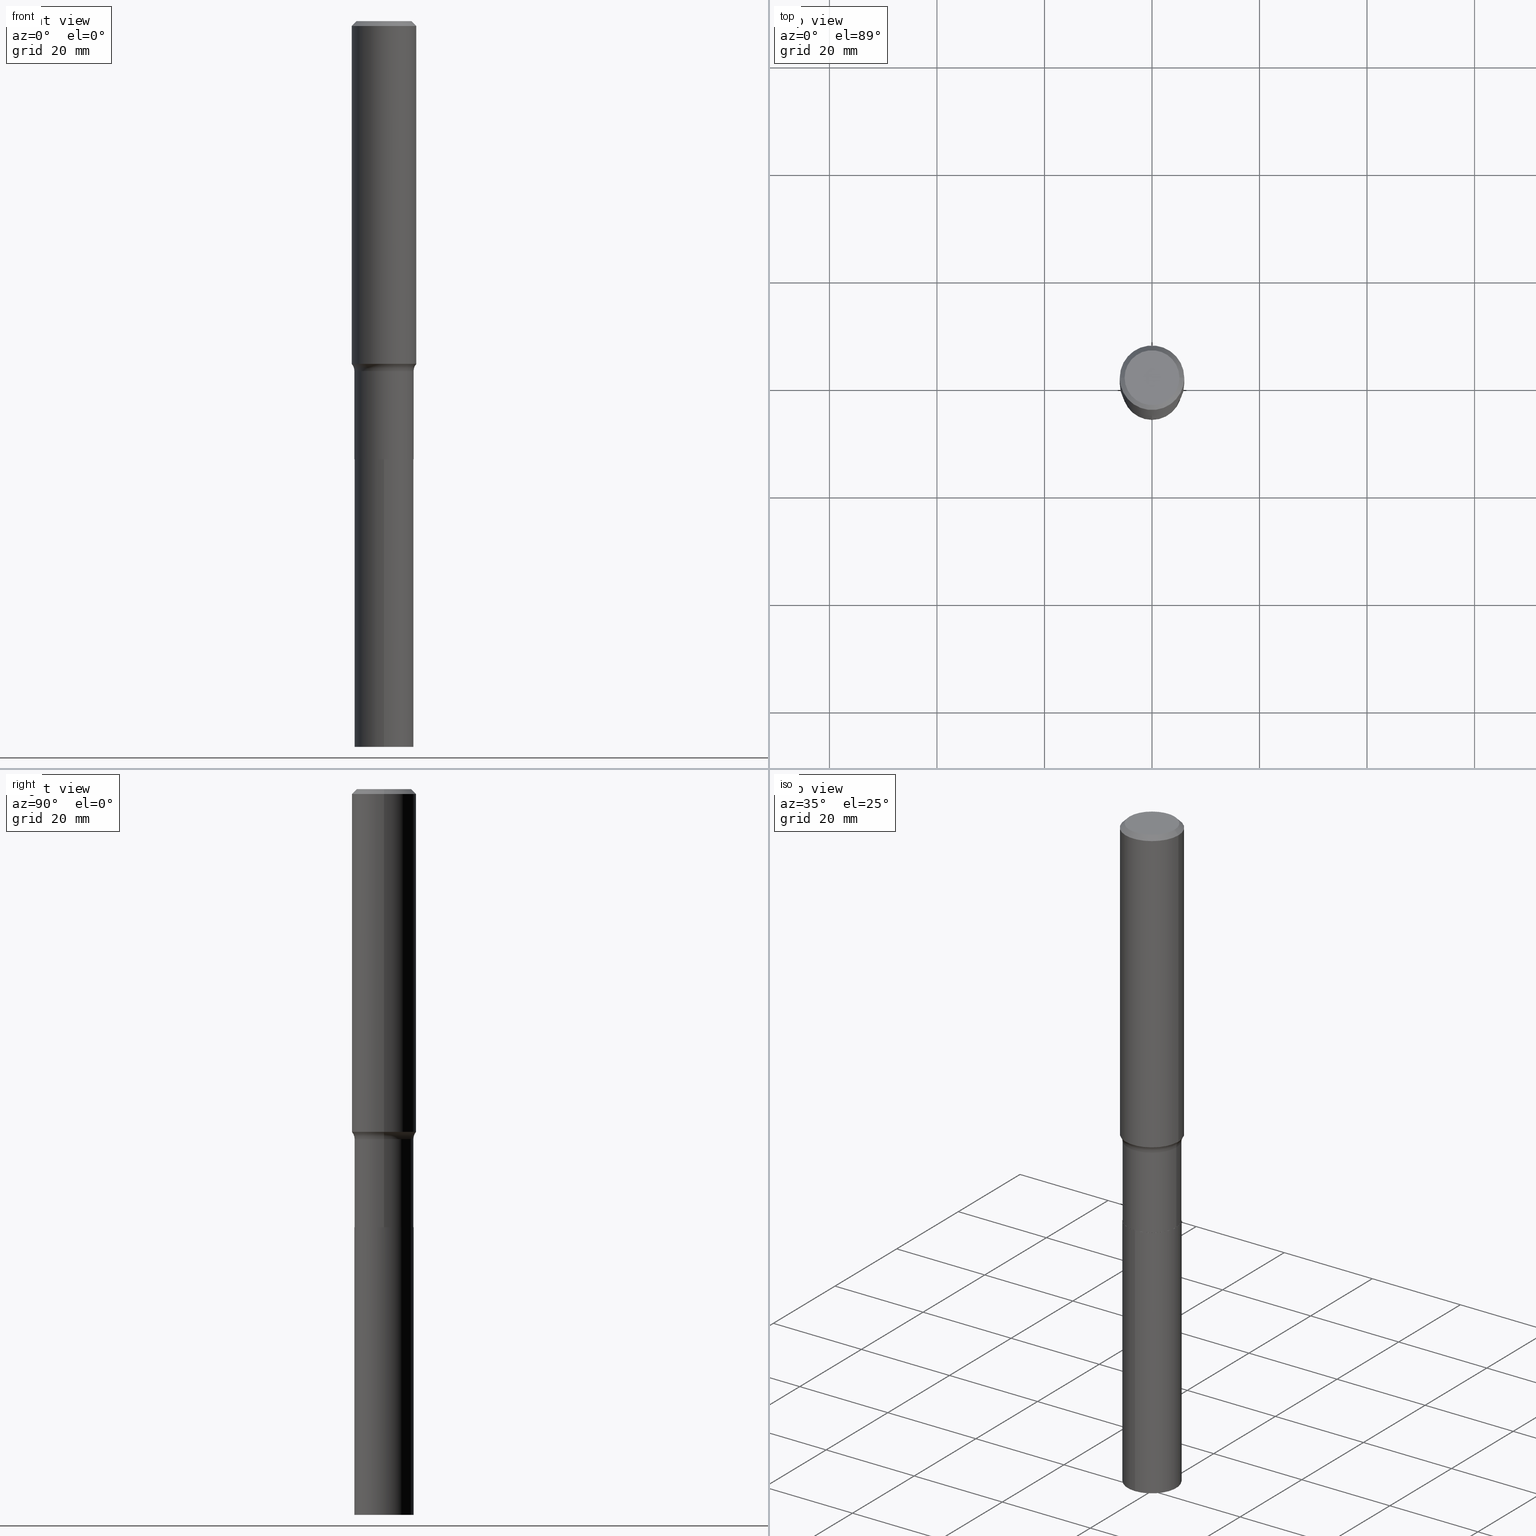
[diagram: canonical four-view strip — front | top / right | iso, engineering-drawing reading convention]
A machine part, canonical four-view strip (front | top / right | iso — engineering-drawing reading convention). The complete STEP part file that produces these views, byte-faithful:
ISO-10303-21;
HEADER;
FILE_DESCRIPTION (( 'STEP AP203' ),
    '1' );
FILE_NAME ('67898.STEP',
    '2024-04-19T16:56:33',
    ( '' ),
    ( '' ),
    'SwSTEP 2.0',
    'SolidWorks 2023',
    '' );
FILE_SCHEMA (( 'CONFIG_CONTROL_DESIGN' ));
ENDSEC;

DATA;
#1 = CARTESIAN_POINT ( 'NONE',  ( 1.538680294288627061E-15, 0.2165499999999888070, -3.209000000000001407 ) ) ;
#2 = ADVANCED_FACE ( 'NONE', ( #262 ), #219, .T. ) ;
#3 = FACE_OUTER_BOUND ( 'NONE', #400, .T. ) ;
#4 = CLOSED_SHELL ( 'NONE', ( #359, #339, #205, #185 ) ) ;
#5 = AXIS2_PLACEMENT_3D ( 'NONE', #292, #16, #157 ) ;
#6 = ORIENTED_EDGE ( 'NONE', *, *, #386, .T. ) ;
#7 = DIRECTION ( 'NONE',  ( -6.982962677686265133E-15, -1.000000000000000000, 2.523064413451178124E-15 ) ) ;
#8 = CARTESIAN_POINT ( 'NONE',  ( 1.299823801295359673E-28, -1.855640517026451512E-14, -5.315000000000001279 ) ) ;
#9 = VERTEX_POINT ( 'NONE', #411 ) ;
#10 = CARTESIAN_POINT ( 'NONE',  ( -0.2160500000000000198, -9.666386808563847423E-15, -3.209000000000000519 ) ) ;
#11 = VECTOR ( 'NONE', #77, 39.37007874015748143 ) ;
#12 = DIRECTION ( 'NONE',  ( 1.000000000000000000, -6.982962677686266711E-15, 0.000000000000000000 ) ) ;
#13 = ORIENTED_EDGE ( 'NONE', *, *, #317, .F. ) ;
#14 = ADVANCED_FACE ( 'NONE', ( #223 ), #269, .T. ) ;
#15 = ORIENTED_EDGE ( 'NONE', *, *, #116, .F. ) ;
#16 = DIRECTION ( 'NONE',  ( -2.445468806185136597E-29, 3.491481338843145583E-15, 1.000000000000000000 ) ) ;
#17 = ORIENTED_EDGE ( 'NONE', *, *, #423, .F. ) ;
#18 = VERTEX_POINT ( 'NONE', #390 ) ;
#19 = APPROVAL ( #422, 'UNSPECIFIED' ) ;
#20 = CARTESIAN_POINT ( 'NONE',  ( 7.847509399048105518E-29, -1.120416361634765640E-14, -3.209000000000000519 ) ) ;
#21 = PRODUCT ( '67898', '67898', '', ( #203 ) ) ;
#22 = PERSON ( 'UNSPECIFIED', 'UNSPECIFIED', 'UNSPECIFIED', ('UNSPECIFIED'), ('UNSPECIFIED'), ('UNSPECIFIED') ) ;
#23 = DESIGN_CONTEXT ( 'detailed design', #80, 'design' ) ;
#24 = CIRCLE ( 'NONE', #40, 0.2007700000000000040 ) ;
#25 = APPROVAL_PERSON_ORGANIZATION ( #344, #244, #129 ) ;
#26 = CARTESIAN_POINT ( 'NONE',  ( 0.2160500000000000198, -1.271283270286177422E-14, -3.209000000000000519 ) ) ;
#27 = DIRECTION ( 'NONE',  ( -2.445740082576205296E-29, 3.491092855611041770E-15, 1.000000000000000000 ) ) ;
#28 = ADVANCED_FACE ( 'NONE', ( #36 ), #95, .T. ) ;
#29 = PERSON_AND_ORGANIZATION ( #22, #392 ) ;
#30 = ADVANCED_BREP_SHAPE_REPRESENTATION ( '67898', ( #100, #418, #431 ), #327 ) ;
#31 = CYLINDRICAL_SURFACE ( 'NONE', #457, 0.2165499999999999647 ) ;
#32 = COORDINATED_UNIVERSAL_TIME_OFFSET ( 5, 0, .BEHIND. ) ;
#33 = CARTESIAN_POINT ( 'NONE',  ( 8.664295980313996991E-31, -1.237031838352134818E-16, -0.03543000000000023908 ) ) ;
#34 = EDGE_CURVE ( 'NONE', #452, #145, #318, .T. ) ;
#35 = PERSON_AND_ORGANIZATION_ROLE ( 'creator' ) ;
#36 = FACE_OUTER_BOUND ( 'NONE', #366, .T. ) ;
#37 = EDGE_CURVE ( 'NONE', #9, #321, #82, .T. ) ;
#38 = DIRECTION ( 'NONE',  ( -6.982962677686265922E-15, -1.000000000000000000, 3.491092855611041770E-15 ) ) ;
#39 = PLANE ( 'NONE',  #133 ) ;
#40 = AXIS2_PLACEMENT_3D ( 'NONE', #350, #312, #98 ) ;
#41 = DIRECTION ( 'NONE',  ( -2.445468806185136597E-29, 3.491481338843145583E-15, 1.000000000000000000 ) ) ;
#42 = PRODUCT_DEFINITION ( 'UNKNOWN', '', #220, #23 ) ;
#43 = CARTESIAN_POINT ( 'NONE',  ( -1.001697619218023151E-46, 1.430158722866391908E-32, 4.096137381448114529E-18 ) ) ;
#44 = DIRECTION ( 'NONE',  ( -2.445468806185136597E-29, 3.491481338843145583E-15, 1.000000000000000000 ) ) ;
#45 = ORIENTED_EDGE ( 'NONE', *, *, #184, .F. ) ;
#46 = CLOSED_SHELL ( 'NONE', ( #14, #2, #28, #54, #120, #180, #211, #335, #110, #356, #201, #237 ) ) ;
#47 = CIRCLE ( 'NONE', #338, 0.2165499999999999370 ) ;
#48 = CARTESIAN_POINT ( 'NONE',  ( -5.008488096090115757E-47, 7.150793614331959538E-33, 2.048068690724057264E-18 ) ) ;
#49 = ORIENTED_EDGE ( 'NONE', *, *, #352, .T. ) ;
#50 = ORIENTED_EDGE ( 'NONE', *, *, #93, .F. ) ;
#51 = VERTEX_POINT ( 'NONE', #426 ) ;
#52 = DIRECTION ( 'NONE',  ( -2.445468806185136597E-29, 3.491481338843145583E-15, 1.000000000000000000 ) ) ;
#53 = ORIENTED_EDGE ( 'NONE', *, *, #468, .F. ) ;
#54 = ADVANCED_FACE ( 'NONE', ( #242 ), #397, .F. ) ;
#55 = EDGE_CURVE ( 'NONE', #192, #18, #354, .T. ) ;
#56 = APPROVAL_ROLE ( '' ) ;
#57 = CIRCLE ( 'NONE', #69, 0.2165500000000000203 ) ;
#58 = CARTESIAN_POINT ( 'NONE',  ( 1.299823801295359673E-28, -1.855640517026451512E-14, -5.315000000000001279 ) ) ;
#59 = DIRECTION ( 'NONE',  ( -6.982962677686265133E-15, -1.000000000000000000, 5.046128826902356247E-15 ) ) ;
#60 = CARTESIAN_POINT ( 'NONE',  ( 0.000000000000000000, 0.000000000000000000, 0.000000000000000000 ) ) ;
#61 = APPROVAL_STATUS ( 'not_yet_approved' ) ;
#62 = TOROIDAL_SURFACE ( 'NONE', #375, 0.2965499999999999248, 0.08000000000000007105 ) ;
#63 = DIRECTION ( 'NONE',  ( 1.000000000000000000, -6.982962677686263555E-15, 0.000000000000000000 ) ) ;
#64 = DIRECTION ( 'NONE',  ( -2.445468806185136597E-29, 3.491481338843145583E-15, 1.000000000000000000 ) ) ;
#65 = CARTESIAN_POINT ( 'NONE',  ( -0.2160500000000000198, -9.669036035737959413E-15, -3.209000000000000519 ) ) ;
#66 = CC_DESIGN_DATE_AND_TIME_ASSIGNMENT ( #173, #311, ( #42 ) ) ;
#67 = DIRECTION ( 'NONE',  ( -2.445468806185136877E-29, 3.491481338843145188E-15, 1.000000000000000000 ) ) ;
#68 = AXIS2_PLACEMENT_3D ( 'NONE', #373, #337, #278 ) ;
#69 = AXIS2_PLACEMENT_3D ( 'NONE', #8, #160, #264 ) ;
#70 = CARTESIAN_POINT ( 'NONE',  ( 7.846286664645011596E-29, -1.120241787567823411E-14, -3.208500000000000352 ) ) ;
#71 = ORIENTED_EDGE ( 'NONE', *, *, #409, .T. ) ;
#72 = CARTESIAN_POINT ( 'NONE',  ( 6.267736550252506452E-29, -8.948666671454983859E-15, -2.563000000000000611 ) ) ;
#73 = VECTOR ( 'NONE', #367, 39.37007874015748143 ) ;
#74 = CC_DESIGN_APPROVAL ( #19, ( #282 ) ) ;
#75 = PRODUCT_DEFINITION_SHAPE ( 'NONE', 'NONE',  #42 ) ;
#76 = ORIENTED_EDGE ( 'NONE', *, *, #285, .T. ) ;
#77 = DIRECTION ( 'NONE',  ( -2.445468806185136877E-29, 3.491481338843145188E-15, 1.000000000000000000 ) ) ;
#78 = EDGE_CURVE ( 'NONE', #290, #217, #202, .T. ) ;
#79 = ORIENTED_EDGE ( 'NONE', *, *, #148, .T. ) ;
#80 = APPLICATION_CONTEXT ( 'configuration controlled 3d designs of mechanical parts and assemblies' ) ;
#81 = ORIENTED_EDGE ( 'NONE', *, *, #322, .F. ) ;
#82 = CIRCLE ( 'NONE', #444, 0.2165500000000000480 ) ;
#83 = CIRCLE ( 'NONE', #319, 0.2165499999999999370 ) ;
#84 = LINE ( 'NONE', #122, #11 ) ;
#85 = EDGE_LOOP ( 'NONE', ( #161, #108 ) ) ;
#86 = PERSON_AND_ORGANIZATION ( #22, #392 ) ;
#87 = ORIENTED_EDGE ( 'NONE', *, *, #317, .T. ) ;
#88 = DATE_AND_TIME ( #241, #250 ) ;
#89 = DIRECTION ( 'NONE',  ( 1.000000000000000000, -6.982962677686266711E-15, 4.876176775795936353E-29 ) ) ;
#90 = PERSON_AND_ORGANIZATION ( #22, #392 ) ;
#91 = DIRECTION ( 'NONE',  ( 1.000000000000000000, -6.982962677686266711E-15, 4.876176775795936353E-29 ) ) ;
#92 = PERSON_AND_ORGANIZATION ( #22, #392 ) ;
#93 = EDGE_CURVE ( 'NONE', #145, #452, #415, .T. ) ;
#94 = DIRECTION ( 'NONE',  ( -6.982962677686266711E-15, -1.000000000000000000, 3.491481338843145583E-15 ) ) ;
#95 = CYLINDRICAL_SURFACE ( 'NONE', #132, 0.2362000000000001598 ) ;
#96 = CC_DESIGN_PERSON_AND_ORGANIZATION_ASSIGNMENT ( #461, #425, ( #21 ) ) ;
#97 = AXIS2_PLACEMENT_3D ( 'NONE', #441, #183, #467 ) ;
#98 = DIRECTION ( 'NONE',  ( 1.000000000000000000, -6.982962677686266711E-15, 4.876140833081945105E-29 ) ) ;
#99 = CIRCLE ( 'NONE', #153, 0.2160500000000000198 ) ;
#100 = MANIFOLD_SOLID_BREP ( 'Body-Move/Copy2[1]', #4 ) ;
#101 = CARTESIAN_POINT ( 'NONE',  ( -0.2165500000000000203, -8.536861979278111098E-15, -3.208500000000000352 ) ) ;
#102 = DIRECTION ( 'NONE',  ( 1.000000000000000000, -6.982962677686266711E-15, 0.000000000000000000 ) ) ;
#103 = ORIENTED_EDGE ( 'NONE', *, *, #215, .T. ) ;
#104 = DIRECTION ( 'NONE',  ( -2.445468806185136597E-29, 3.491481338843145583E-15, 1.000000000000000000 ) ) ;
#105 = AXIS2_PLACEMENT_3D ( 'NONE', #218, #44, #186 ) ;
#106 = EDGE_LOOP ( 'NONE', ( #447, #443, #187, #334 ) ) ;
#107 = FACE_OUTER_BOUND ( 'NONE', #224, .T. ) ;
#108 = ORIENTED_EDGE ( 'NONE', *, *, #434, .F. ) ;
#109 = CYLINDRICAL_SURFACE ( 'NONE', #172, 0.2165500000000000203 ) ;
#110 = ADVANCED_FACE ( 'NONE', ( #138 ), #384, .T. ) ;
#111 = ORIENTED_EDGE ( 'NONE', *, *, #78, .F. ) ;
#112 = DIRECTION ( 'NONE',  ( -2.445740082576205296E-29, 3.491092855611041770E-15, 1.000000000000000000 ) ) ;
#113 = ORIENTED_EDGE ( 'NONE', *, *, #349, .T. ) ;
#114 = AXIS2_PLACEMENT_3D ( 'NONE', #419, #199, #454 ) ;
#115 = APPROVAL_PERSON_ORGANIZATION ( #232, #152, #456 ) ;
#116 = EDGE_CURVE ( 'NONE', #452, #149, #178, .T. ) ;
#117 = EDGE_LOOP ( 'NONE', ( #17, #87, #341, #329 ) ) ;
#118 = LINE ( 'NONE', #448, #270 ) ;
#119 = DIRECTION ( 'NONE',  ( 2.445468806185136597E-29, -3.491481338843145583E-15, -1.000000000000000000 ) ) ;
#120 = ADVANCED_FACE ( 'NONE', ( #136 ), #31, .T. ) ;
#121 = ORIENTED_EDGE ( 'NONE', *, *, #436, .F. ) ;
#122 = CARTESIAN_POINT ( 'NONE',  ( 0.2165499999999999647, -1.512160567852960823E-15, 1.055936080798609895E-29 ) ) ;
#123 = VERTEX_POINT ( 'NONE', #26 ) ;
#124 = AXIS2_PLACEMENT_3D ( 'NONE', #58, #27, #59 ) ;
#125 = CC_DESIGN_APPROVAL ( #244, ( #220 ) ) ;
#126 = APPROVAL_STATUS ( 'not_yet_approved' ) ;
#127 = EDGE_LOOP ( 'NONE', ( #79, #103 ) ) ;
#128 = CARTESIAN_POINT ( 'NONE',  ( 0.2965499999999999248, -1.101946425352284476E-14, -2.563000000000000611 ) ) ;
#129 = APPROVAL_ROLE ( '' ) ;
#130 = DIRECTION ( 'NONE',  ( 2.445740082576205015E-29, -3.491092855611041770E-15, -1.000000000000000000 ) ) ;
#131 = DATE_TIME_ROLE ( 'classification_date' ) ;
#132 = AXIS2_PLACEMENT_3D ( 'NONE', #60, #305, #279 ) ;
#133 = AXIS2_PLACEMENT_3D ( 'NONE', #245, #289, #38 ) ;
#134 = DIRECTION ( 'NONE',  ( 0.7071067811865451302, -7.319954787623248157E-15, -0.7071067811865499042 ) ) ;
#135 = COORDINATED_UNIVERSAL_TIME_OFFSET ( 5, 0, .BEHIND. ) ;
#136 = FACE_OUTER_BOUND ( 'NONE', #332, .T. ) ;
#137 = ORIENTED_EDGE ( 'NONE', *, *, #386, .F. ) ;
#138 = FACE_OUTER_BOUND ( 'NONE', #106, .T. ) ;
#139 = AXIS2_PLACEMENT_3D ( 'NONE', #204, #206, #89 ) ;
#140 = CARTESIAN_POINT ( 'NONE',  ( 6.267736550252506452E-29, -8.948666671454983859E-15, -2.563000000000000611 ) ) ;
#141 = DIRECTION ( 'NONE',  ( -2.445740082576205576E-29, 3.491092855611041770E-15, 1.000000000000000000 ) ) ;
#142 = CARTESIAN_POINT ( 'NONE',  ( 7.847509399048105518E-29, -1.120416361634765640E-14, -3.209000000000000519 ) ) ;
#143 = AXIS2_PLACEMENT_3D ( 'NONE', #43, #104, #147 ) ;
#144 = AXIS2_PLACEMENT_3D ( 'NONE', #300, #52, #370 ) ;
#145 = VERTEX_POINT ( 'NONE', #383 ) ;
#146 = CC_DESIGN_PERSON_AND_ORGANIZATION_ASSIGNMENT ( #92, #35, ( #42 ) ) ;
#147 = DIRECTION ( 'NONE',  ( 1.000000000000000000, -6.982962677686266711E-15, 4.876140833081945105E-29 ) ) ;
#148 = EDGE_CURVE ( 'NONE', #378, #192, #24, .T. ) ;
#149 = VERTEX_POINT ( 'NONE', #238 ) ;
#150 = LENGTH_MEASURE_WITH_UNIT ( LENGTH_MEASURE( 0.02539999999999999897 ), #298 );
#151 = ORIENTED_EDGE ( 'NONE', *, *, #267, .T. ) ;
#152 = APPROVAL ( #61, 'UNSPECIFIED' ) ;
#153 = AXIS2_PLACEMENT_3D ( 'NONE', #295, #254, #410 ) ;
#154 = CYLINDRICAL_SURFACE ( 'NONE', #163, 0.2165500000000000203 ) ;
#155 = ORIENTED_EDGE ( 'NONE', *, *, #423, .T. ) ;
#156 = ORIENTED_EDGE ( 'NONE', *, *, #34, .T. ) ;
#157 = DIRECTION ( 'NONE',  ( 1.000000000000000000, -6.982962677686266711E-15, 0.000000000000000000 ) ) ;
#158 = EDGE_LOOP ( 'NONE', ( #272, #265, #380, #111 ) ) ;
#159 = ORIENTED_EDGE ( 'NONE', *, *, #402, .F. ) ;
#160 = DIRECTION ( 'NONE',  ( -2.445740082576205296E-29, 3.491092855611041770E-15, 1.000000000000000000 ) ) ;
#161 = ORIENTED_EDGE ( 'NONE', *, *, #381, .F. ) ;
#162 = VECTOR ( 'NONE', #67, 39.37007874015748143 ) ;
#163 = AXIS2_PLACEMENT_3D ( 'NONE', #20, #112, #196 ) ;
#164 = APPLICATION_PROTOCOL_DEFINITION ( 'international standard', 'config_control_design', 1994, #80 ) ;
#165 = FACE_OUTER_BOUND ( 'NONE', #117, .T. ) ;
#166 = SHAPE_DEFINITION_REPRESENTATION ( #75, #30 ) ;
#167 = PLANE ( 'NONE',  #247 ) ;
#168 = EDGE_CURVE ( 'NONE', #145, #51, #293, .T. ) ;
#169 = DATE_AND_TIME ( #229, #438 ) ;
#170 = DIRECTION ( 'NONE',  ( 1.000000000000000000, -6.982962677686281699E-15, 0.000000000000000000 ) ) ;
#171 = DIMENSIONAL_EXPONENTS ( 1.000000000000000000, 0.000000000000000000, 0.000000000000000000, 0.000000000000000000, 0.000000000000000000, 0.000000000000000000, 0.000000000000000000 ) ;
#172 = AXIS2_PLACEMENT_3D ( 'NONE', #464, #216, #7 ) ;
#173 = DATE_AND_TIME ( #200, #369 ) ;
#174 = CARTESIAN_POINT ( 'NONE',  ( 6.139311538755103453E-29, -8.765309791191448647E-15, -2.510484502287419595 ) ) ;
#175 = APPROVAL_DATE_TIME ( #88, #244 ) ;
#176 = CARTESIAN_POINT ( 'NONE',  ( -1.512160567852882528E-15, -0.2165500000000112057, -3.209000000000000075 ) ) ;
#177 = CARTESIAN_POINT ( 'NONE',  ( 7.847509399048105518E-29, -1.120416361634765640E-14, -3.209000000000000519 ) ) ;
#178 = CIRCLE ( 'NONE', #234, 0.08000000000000002942 ) ;
#179 = DIRECTION ( 'NONE',  ( -2.445468806185136597E-29, 3.491481338843145583E-15, 1.000000000000000000 ) ) ;
#180 = ADVANCED_FACE ( 'NONE', ( #165 ), #453, .T. ) ;
#181 = AXIS2_PLACEMENT_3D ( 'NONE', #70, #41, #439 ) ;
#182 = ORIENTED_EDGE ( 'NONE', *, *, #37, .T. ) ;
#183 = DIRECTION ( 'NONE',  ( -2.438088387897960049E-29, 3.491481338843145188E-15, 1.000000000000000000 ) ) ;
#184 = EDGE_CURVE ( 'NONE', #294, #290, #277, .T. ) ;
#185 = ADVANCED_FACE ( 'NONE', ( #309 ), #167, .F. ) ;
#186 = DIRECTION ( 'NONE',  ( 1.000000000000000000, -6.982962677686266711E-15, 4.876176775795936353E-29 ) ) ;
#187 = ORIENTED_EDGE ( 'NONE', *, *, #468, .T. ) ;
#188 = CARTESIAN_POINT ( 'NONE',  ( 8.664295980313996991E-31, -1.237031838352134818E-16, -0.03543000000000023908 ) ) ;
#189 = FACE_OUTER_BOUND ( 'NONE', #158, .T. ) ;
#190 = CC_DESIGN_DATE_AND_TIME_ASSIGNMENT ( #313, #131, ( #282 ) ) ;
#191 = DIRECTION ( 'NONE',  ( -0.7071067811865451302, 2.468850131082231817E-15, -0.7071067811865499042 ) ) ;
#192 = VERTEX_POINT ( 'NONE', #462 ) ;
#193 = CIRCLE ( 'NONE', #144, 0.2160500000000000198 ) ;
#194 = CARTESIAN_POINT ( 'NONE',  ( -0.2362000000000001598, 1.678301941865357775E-15, -1.161852468318209598E-29 ) ) ;
#195 = ORIENTED_EDGE ( 'NONE', *, *, #231, .F. ) ;
#196 = DIRECTION ( 'NONE',  ( -6.982962677686265133E-15, -1.000000000000000000, 2.523064413451178124E-15 ) ) ;
#197 = VERTEX_POINT ( 'NONE', #246 ) ;
#198 = PERSON_AND_ORGANIZATION_ROLE ( 'creator' ) ;
#199 = DIRECTION ( 'NONE',  ( -2.445468806185136597E-29, 3.491481338843145583E-15, 1.000000000000000000 ) ) ;
#200 = CALENDAR_DATE ( 2024, 19, 4 ) ;
#201 = ADVANCED_FACE ( 'NONE', ( #360 ), #284, .F. ) ;
#202 = LINE ( 'NONE', #176, #302 ) ;
#203 = MECHANICAL_CONTEXT ( 'NONE', #348, 'mechanical' ) ;
#204 = CARTESIAN_POINT ( 'NONE',  ( 0.000000000000000000, 0.000000000000000000, 0.000000000000000000 ) ) ;
#205 = ADVANCED_FACE ( 'NONE', ( #365 ), #109, .T. ) ;
#206 = DIRECTION ( 'NONE',  ( -2.445468806185136597E-29, 3.491481338843145583E-15, 1.000000000000000000 ) ) ;
#207 = COORDINATED_UNIVERSAL_TIME_OFFSET ( 5, 0, .BEHIND. ) ;
#208 = CIRCLE ( 'NONE', #181, 0.2165500000000000480 ) ;
#209 = CARTESIAN_POINT ( 'NONE',  ( 0.2361999999999999933, -1.744152810908849251E-15, -0.03543000000000023908 ) ) ;
#210 = DIRECTION ( 'NONE',  ( -2.445468806185136597E-29, 3.491481338843145583E-15, 1.000000000000000000 ) ) ;
#211 = ADVANCED_FACE ( 'NONE', ( #3 ), #62, .F. ) ;
#212 = DIRECTION ( 'NONE',  ( -6.982962677686265133E-15, -1.000000000000000000, 2.523064413451178124E-15 ) ) ;
#213 = AXIS2_PLACEMENT_3D ( 'NONE', #240, #387, #243 ) ;
#214 = CARTESIAN_POINT ( 'NONE',  ( -1.512160567852830858E-15, -0.2165500000000185610, -5.315000000000000391 ) ) ;
#215 = EDGE_CURVE ( 'NONE', #192, #378, #225, .T. ) ;
#216 = DIRECTION ( 'NONE',  ( -2.445740082576205296E-29, 3.491092855611041770E-15, 1.000000000000000000 ) ) ;
#217 = VERTEX_POINT ( 'NONE', #435 ) ;
#218 = CARTESIAN_POINT ( 'NONE',  ( 0.000000000000000000, 0.000000000000000000, 0.000000000000000000 ) ) ;
#219 = CONICAL_SURFACE ( 'NONE', #310, 0.2361999999999999933, 0.7853981633974449483 ) ;
#220 = PRODUCT_DEFINITION_FORMATION_WITH_SPECIFIED_SOURCE ( 'ANY', '', #21, .NOT_KNOWN. ) ;
#221 = PRODUCT_RELATED_PRODUCT_CATEGORY ( 'detail', '', ( #21 ) ) ;
#222 = CARTESIAN_POINT ( 'NONE',  ( -0.2007700000000000040, 1.463821008716676943E-15, 4.096137381438094301E-18 ) ) ;
#223 = FACE_OUTER_BOUND ( 'NONE', #413, .T. ) ;
#224 = EDGE_LOOP ( 'NONE', ( #137, #299, #230, #296 ) ) ;
#225 = CIRCLE ( 'NONE', #143, 0.2007700000000000040 ) ;
#226 = AXIS2_PLACEMENT_3D ( 'NONE', #362, #442, #333 ) ;
#227 = DIRECTION ( 'NONE',  ( -2.445468806185136597E-29, 3.491481338843145583E-15, 1.000000000000000000 ) ) ;
#228 = ORIENTED_EDGE ( 'NONE', *, *, #55, .T. ) ;
#229 = CALENDAR_DATE ( 2024, 19, 4 ) ;
#230 = ORIENTED_EDGE ( 'NONE', *, *, #260, .T. ) ;
#231 = EDGE_CURVE ( 'NONE', #294, #258, #393, .T. ) ;
#232 = PERSON_AND_ORGANIZATION ( #22, #392 ) ;
#233 = DIRECTION ( 'NONE',  ( 1.000000000000000000, -6.982962677686263555E-15, 0.000000000000000000 ) ) ;
#234 = AXIS2_PLACEMENT_3D ( 'NONE', #128, #94, #170 ) ;
#235 = APPROVAL_PERSON_ORGANIZATION ( #86, #19, #56 ) ;
#236 = APPROVAL_DATE_TIME ( #169, #19 ) ;
#237 = ADVANCED_FACE ( 'NONE', ( #252 ), #430, .T. ) ;
#238 = CARTESIAN_POINT ( 'NONE',  ( 0.2165499999999999370, -1.046082723930794468E-14, -2.563000000000000611 ) ) ;
#239 = UNCERTAINTY_MEASURE_WITH_UNIT (LENGTH_MEASURE( 1.000000000000000082E-05 ), #266, 'distance_accuracy_value', 'NONE');
#240 = CARTESIAN_POINT ( 'NONE',  ( -0.2965499999999999248, -6.841552188558407686E-15, -2.563000000000000611 ) ) ;
#241 = CALENDAR_DATE ( 2024, 19, 4 ) ;
#242 = FACE_OUTER_BOUND ( 'NONE', #429, .T. ) ;
#243 = DIRECTION ( 'NONE',  ( -1.000000000000000000, 7.105427357601008170E-15, 0.000000000000000000 ) ) ;
#244 = APPROVAL ( #126, 'UNSPECIFIED' ) ;
#245 = CARTESIAN_POINT ( 'NONE',  ( -5.730761199503226596E-29, -4.537739803093735735E-14, -5.315000000000001279 ) ) ;
#246 = CARTESIAN_POINT ( 'NONE',  ( -0.2361999999999999933, -2.766204545647972550E-15, -0.03543000000000023908 ) ) ;
#247 = AXIS2_PLACEMENT_3D ( 'NONE', #307, #130, #458 ) ;
#248 = CC_DESIGN_PERSON_AND_ORGANIZATION_ASSIGNMENT ( #90, #416, ( #282 ) ) ;
#249 = DIRECTION ( 'NONE',  ( -0.7071067811864509833, 7.493145998870005484E-15, 0.7071067811866440511 ) ) ;
#250 = LOCAL_TIME ( 12, 56, 32.00000000000000000, #420 ) ;
#251 = ORIENTED_EDGE ( 'NONE', *, *, #381, .T. ) ;
#252 = FACE_OUTER_BOUND ( 'NONE', #291, .T. ) ;
#253 = EDGE_LOOP ( 'NONE', ( #159, #45 ) ) ;
#254 = DIRECTION ( 'NONE',  ( -2.445468806185136597E-29, 3.491481338843145583E-15, 1.000000000000000000 ) ) ;
#255 = ORIENTED_EDGE ( 'NONE', *, *, #434, .T. ) ;
#256 = LINE ( 'NONE', #194, #303 ) ;
#257 = VECTOR ( 'NONE', #134, 39.37007874015748143 ) ;
#258 = VERTEX_POINT ( 'NONE', #1 ) ;
#259 = CC_DESIGN_APPROVAL ( #152, ( #42 ) ) ;
#260 = EDGE_CURVE ( 'NONE', #452, #18, #286, .T. ) ;
#261 = DIRECTION ( 'NONE',  ( -2.445468806185136877E-29, 3.491481338843145188E-15, 1.000000000000000000 ) ) ;
#262 = FACE_OUTER_BOUND ( 'NONE', #371, .T. ) ;
#263 = ORIENTED_EDGE ( 'NONE', *, *, #285, .F. ) ;
#264 = DIRECTION ( 'NONE',  ( -6.982962677686265133E-15, -1.000000000000000000, 5.046128826902356247E-15 ) ) ;
#265 = ORIENTED_EDGE ( 'NONE', *, *, #231, .T. ) ;
#266 =( CONVERSION_BASED_UNIT ( 'INCH', #150 ) LENGTH_UNIT ( ) NAMED_UNIT ( #171 ) );
#267 = EDGE_CURVE ( 'NONE', #123, #9, #324, .T. ) ;
#268 = ORIENTED_EDGE ( 'NONE', *, *, #409, .F. ) ;
#269 = CONICAL_SURFACE ( 'NONE', #68, 0.2160500000000000198, 0.7853981633973118326 ) ;
#270 = VECTOR ( 'NONE', #191, 39.37007874015748143 ) ;
#271 = PERSON_AND_ORGANIZATION_ROLE ( 'design_supplier' ) ;
#272 = ORIENTED_EDGE ( 'NONE', *, *, #402, .T. ) ;
#273 = COORDINATED_UNIVERSAL_TIME_OFFSET ( 5, 0, .BEHIND. ) ;
#274 = DIRECTION ( 'NONE',  ( -2.445468806185136597E-29, 3.491481338843145583E-15, 1.000000000000000000 ) ) ;
#275 = CC_DESIGN_PERSON_AND_ORGANIZATION_ASSIGNMENT ( #379, #198, ( #220 ) ) ;
#276 = CARTESIAN_POINT ( 'NONE',  ( 0.000000000000000000, 0.000000000000000000, 0.000000000000000000 ) ) ;
#277 = CIRCLE ( 'NONE', #124, 0.2165500000000000203 ) ;
#278 = DIRECTION ( 'NONE',  ( 1.000000000000000000, -6.982962677686266711E-15, 0.000000000000000000 ) ) ;
#279 = DIRECTION ( 'NONE',  ( 1.000000000000000000, -6.982962677686266711E-15, 4.876176775795936353E-29 ) ) ;
#280 = CARTESIAN_POINT ( 'NONE',  ( 6.267736550252506452E-29, -8.948666671454983859E-15, -2.563000000000000611 ) ) ;
#281 = AXIS2_PLACEMENT_3D ( 'NONE', #142, #210, #102 ) ;
#282 = SECURITY_CLASSIFICATION ( '', '', #382 ) ;
#283 = CARTESIAN_POINT ( 'NONE',  ( 1.538680294288575194E-15, 0.2165499999999888070, -3.209000000000001407 ) ) ;
#284 = PLANE ( 'NONE',  #97 ) ;
#285 = EDGE_CURVE ( 'NONE', #368, #321, #288, .T. ) ;
#286 = LINE ( 'NONE', #395, #162 ) ;
#287 = CIRCLE ( 'NONE', #405, 0.2361999999999999933 ) ;
#288 = LINE ( 'NONE', #65, #346 ) ;
#289 = DIRECTION ( 'NONE',  ( -2.445740082576205015E-29, 3.491092855611041770E-15, 1.000000000000000000 ) ) ;
#290 = VERTEX_POINT ( 'NONE', #214 ) ;
#291 = EDGE_LOOP ( 'NONE', ( #263, #255, #151, #13 ) ) ;
#292 = CARTESIAN_POINT ( 'NONE',  ( 8.664295980313996991E-31, -1.237031838352134818E-16, -0.03543000000000023908 ) ) ;
#293 = CIRCLE ( 'NONE', #213, 0.08000000000000002942 ) ;
#294 = VERTEX_POINT ( 'NONE', #399 ) ;
#295 = CARTESIAN_POINT ( 'NONE',  ( 7.847509399048105518E-29, -1.120416361634765640E-14, -3.209000000000000519 ) ) ;
#296 = ORIENTED_EDGE ( 'NONE', *, *, #361, .F. ) ;
#297 = EDGE_LOOP ( 'NONE', ( #195, #325, #391, #449 ) ) ;
#298 =( LENGTH_UNIT ( ) NAMED_UNIT ( * ) SI_UNIT ( $, .METRE. ) );
#299 = ORIENTED_EDGE ( 'NONE', *, *, #93, .T. ) ;
#300 = CARTESIAN_POINT ( 'NONE',  ( 7.847509399048105518E-29, -1.120416361634765640E-14, -3.209000000000000519 ) ) ;
#301 = ORIENTED_EDGE ( 'NONE', *, *, #322, .T. ) ;
#302 = VECTOR ( 'NONE', #315, 39.37007874015748143 ) ;
#303 = VECTOR ( 'NONE', #261, 39.37007874015748143 ) ;
#304 = APPROVAL_DATE_TIME ( #351, #152 ) ;
#305 = DIRECTION ( 'NONE',  ( -2.445468806185136597E-29, 3.491481338843145583E-15, 1.000000000000000000 ) ) ;
#306 = CARTESIAN_POINT ( 'NONE',  ( 0.000000000000000000, 0.000000000000000000, 0.000000000000000000 ) ) ;
#307 = CARTESIAN_POINT ( 'NONE',  ( 7.847509399048105518E-29, -1.120416361634765640E-14, -3.209000000000000519 ) ) ;
#308 = DIRECTION ( 'NONE',  ( 0.000000000000000000, 0.000000000000000000, 1.000000000000000000 ) ) ;
#309 = FACE_OUTER_BOUND ( 'NONE', #377, .T. ) ;
#310 = AXIS2_PLACEMENT_3D ( 'NONE', #188, #119, #331 ) ;
#311 = DATE_TIME_ROLE ( 'creation_date' ) ;
#312 = DIRECTION ( 'NONE',  ( -2.445468806185136597E-29, 3.491481338843145583E-15, 1.000000000000000000 ) ) ;
#313 = DATE_AND_TIME ( #357, #363 ) ;
#314 = EDGE_CURVE ( 'NONE', #51, #149, #47, .T. ) ;
#315 = DIRECTION ( 'NONE',  ( -2.445740082576205576E-29, 3.491092855611041770E-15, 1.000000000000000000 ) ) ;
#316 = DIRECTION ( 'NONE',  ( -2.445740082576205296E-29, 3.491092855611041770E-15, 1.000000000000000000 ) ) ;
#317 = EDGE_CURVE ( 'NONE', #321, #9, #208, .T. ) ;
#318 = CIRCLE ( 'NONE', #355, 0.2362000000000003264 ) ;
#319 = AXIS2_PLACEMENT_3D ( 'NONE', #72, #179, #323 ) ;
#320 = DIRECTION ( 'NONE',  ( 1.000000000000000000, -6.982962677686268288E-15, 4.883557194083114022E-29 ) ) ;
#321 = VERTEX_POINT ( 'NONE', #101 ) ;
#322 = EDGE_CURVE ( 'NONE', #149, #51, #83, .T. ) ;
#323 = DIRECTION ( 'NONE',  ( 1.000000000000000000, -6.982962677686266711E-15, 0.000000000000000000 ) ) ;
#324 = LINE ( 'NONE', #437, #73 ) ;
#325 = ORIENTED_EDGE ( 'NONE', *, *, #184, .T. ) ;
#326 = VECTOR ( 'NONE', #141, 39.37007874015748143 ) ;
#327 =( GEOMETRIC_REPRESENTATION_CONTEXT ( 3 ) GLOBAL_UNCERTAINTY_ASSIGNED_CONTEXT ( ( #239 ) ) GLOBAL_UNIT_ASSIGNED_CONTEXT ( ( #266, #414, #372 ) ) REPRESENTATION_CONTEXT ( 'NONE', 'WORKASPACE' ) );
#328 = FACE_OUTER_BOUND ( 'NONE', #253, .T. ) ;
#329 = ORIENTED_EDGE ( 'NONE', *, *, #314, .F. ) ;
#330 = APPLICATION_PROTOCOL_DEFINITION ( 'international standard', 'config_control_design', 1994, #348 ) ;
#331 = DIRECTION ( 'NONE',  ( -1.000000000000000000, 6.982962677686266711E-15, 0.000000000000000000 ) ) ;
#332 = EDGE_LOOP ( 'NONE', ( #182, #155, #81, #121 ) ) ;
#333 = DIRECTION ( 'NONE',  ( -6.982962677686265133E-15, -1.000000000000000000, 2.523064413451178124E-15 ) ) ;
#334 = ORIENTED_EDGE ( 'NONE', *, *, #361, .T. ) ;
#335 = ADVANCED_FACE ( 'NONE', ( #107 ), #401, .T. ) ;
#336 = DIRECTION ( 'NONE',  ( 2.438088387897960049E-29, -3.491481338843145188E-15, -1.000000000000000000 ) ) ;
#337 = DIRECTION ( 'NONE',  ( -2.445468806185136597E-29, 3.491481338843145583E-15, 1.000000000000000000 ) ) ;
#338 = AXIS2_PLACEMENT_3D ( 'NONE', #432, #364, #394 ) ;
#339 = ADVANCED_FACE ( 'NONE', ( #328 ), #39, .F. ) ;
#340 = DIRECTION ( 'NONE',  ( -2.445468806185136877E-29, 3.491481338843145188E-15, 1.000000000000000000 ) ) ;
#341 = ORIENTED_EDGE ( 'NONE', *, *, #436, .T. ) ;
#342 = PLANE ( 'NONE',  #347 ) ;
#343 = ORIENTED_EDGE ( 'NONE', *, *, #168, .F. ) ;
#344 = PERSON_AND_ORGANIZATION ( #22, #392 ) ;
#345 = DIRECTION ( 'NONE',  ( -2.445468806185136597E-29, 3.491481338843145583E-15, 1.000000000000000000 ) ) ;
#346 = VECTOR ( 'NONE', #249, 39.37007874015748143 ) ;
#347 = AXIS2_PLACEMENT_3D ( 'NONE', #48, #336, #406 ) ;
#348 = APPLICATION_CONTEXT ( 'configuration controlled 3d designs of mechanical parts and assemblies' ) ;
#349 = EDGE_CURVE ( 'NONE', #258, #217, #445, .T. ) ;
#350 = CARTESIAN_POINT ( 'NONE',  ( -1.001697619218023151E-46, 1.430158722866391908E-32, 4.096137381448114529E-18 ) ) ;
#351 = DATE_AND_TIME ( #353, #460 ) ;
#352 = EDGE_CURVE ( 'NONE', #217, #258, #385, .T. ) ;
#353 = CALENDAR_DATE ( 2024, 19, 4 ) ;
#354 = LINE ( 'NONE', #209, #257 ) ;
#355 = AXIS2_PLACEMENT_3D ( 'NONE', #174, #424, #233 ) ;
#356 = ADVANCED_FACE ( 'NONE', ( #446 ), #342, .F. ) ;
#357 = CALENDAR_DATE ( 2024, 19, 4 ) ;
#358 = DIRECTION ( 'NONE',  ( 1.000000000000000000, -6.982962677686268288E-15, 4.883557194083114022E-29 ) ) ;
#359 = ADVANCED_FACE ( 'NONE', ( #189 ), #154, .T. ) ;
#360 = FACE_OUTER_BOUND ( 'NONE', #85, .T. ) ;
#361 = EDGE_CURVE ( 'NONE', #197, #18, #287, .T. ) ;
#362 = CARTESIAN_POINT ( 'NONE',  ( 7.847509399048105518E-29, -1.120416361634765640E-14, -3.209000000000000519 ) ) ;
#363 = LOCAL_TIME ( 12, 56, 32.00000000000000000, #207 ) ;
#364 = DIRECTION ( 'NONE',  ( -2.445468806185136597E-29, 3.491481338843145583E-15, 1.000000000000000000 ) ) ;
#365 = FACE_OUTER_BOUND ( 'NONE', #297, .T. ) ;
#366 = EDGE_LOOP ( 'NONE', ( #156, #6, #268, #440 ) ) ;
#367 = DIRECTION ( 'NONE',  ( 0.7071067811864509833, -2.468850131081245741E-15, 0.7071067811866440511 ) ) ;
#368 = VERTEX_POINT ( 'NONE', #10 ) ;
#369 = LOCAL_TIME ( 12, 56, 32.00000000000000000, #32 ) ;
#370 = DIRECTION ( 'NONE',  ( 1.000000000000000000, -6.982962677686266711E-15, 0.000000000000000000 ) ) ;
#371 = EDGE_LOOP ( 'NONE', ( #427, #228, #71, #53 ) ) ;
#372 =( NAMED_UNIT ( * ) SI_UNIT ( $, .STERADIAN. ) SOLID_ANGLE_UNIT ( ) );
#373 = CARTESIAN_POINT ( 'NONE',  ( 7.847509399048105518E-29, -1.120416361634765640E-14, -3.209000000000000519 ) ) ;
#374 = CARTESIAN_POINT ( 'NONE',  ( 8.664295980313996991E-31, -1.237031838352134818E-16, -0.03543000000000023908 ) ) ;
#375 = AXIS2_PLACEMENT_3D ( 'NONE', #140, #64, #320 ) ;
#376 = VECTOR ( 'NONE', #340, 39.37007874015748143 ) ;
#377 = EDGE_LOOP ( 'NONE', ( #49, #113 ) ) ;
#378 = VERTEX_POINT ( 'NONE', #222 ) ;
#379 = PERSON_AND_ORGANIZATION ( #22, #392 ) ;
#380 = ORIENTED_EDGE ( 'NONE', *, *, #352, .F. ) ;
#381 = EDGE_CURVE ( 'NONE', #123, #368, #193, .T. ) ;
#382 = SECURITY_CLASSIFICATION_LEVEL ( 'unclassified' ) ;
#383 = CARTESIAN_POINT ( 'NONE',  ( -0.2362000000000004096, -7.087007849326089886E-15, -2.510484502287419595 ) ) ;
#384 = CONICAL_SURFACE ( 'NONE', #396, 0.2361999999999999933, 0.7853981633974449483 ) ;
#385 = CIRCLE ( 'NONE', #226, 0.2165500000000000203 ) ;
#386 = EDGE_CURVE ( 'NONE', #145, #197, #256, .T. ) ;
#387 = DIRECTION ( 'NONE',  ( 7.105427357601001859E-15, 1.000000000000000000, -3.491481338843145583E-15 ) ) ;
#388 = DIRECTION ( 'NONE',  ( 1.000000000000000000, 0.000000000000000000, 0.000000000000000000 ) ) ;
#389 = DIRECTION ( 'NONE',  ( 2.445468806185136597E-29, -3.491481338843145583E-15, -1.000000000000000000 ) ) ;
#390 = CARTESIAN_POINT ( 'NONE',  ( 0.2361999999999999933, -1.773078968304709711E-15, -0.03543000000000023908 ) ) ;
#391 = ORIENTED_EDGE ( 'NONE', *, *, #78, .T. ) ;
#392 = ORGANIZATION ( 'UNSPECIFIED', 'UNSPECIFIED', '' ) ;
#393 = LINE ( 'NONE', #283, #326 ) ;
#394 = DIRECTION ( 'NONE',  ( 1.000000000000000000, -6.982962677686266711E-15, 0.000000000000000000 ) ) ;
#395 = CARTESIAN_POINT ( 'NONE',  ( 0.2362000000000001598, -1.649375784469497314E-15, 1.151752954443000929E-29 ) ) ;
#396 = AXIS2_PLACEMENT_3D ( 'NONE', #33, #389, #428 ) ;
#397 = TOROIDAL_SURFACE ( 'NONE', #465, 0.2965499999999999248, 0.08000000000000007105 ) ;
#398 = AXIS2_PLACEMENT_3D ( 'NONE', #177, #316, #212 ) ;
#399 = CARTESIAN_POINT ( 'NONE',  ( 1.538680294288601029E-15, 0.2165499999999814795, -5.315000000000003055 ) ) ;
#400 = EDGE_LOOP ( 'NONE', ( #343, #433, #403, #301 ) ) ;
#401 = CYLINDRICAL_SURFACE ( 'NONE', #105, 0.2362000000000001598 ) ;
#402 = EDGE_CURVE ( 'NONE', #290, #294, #57, .T. ) ;
#403 = ORIENTED_EDGE ( 'NONE', *, *, #116, .T. ) ;
#404 = CARTESIAN_POINT ( 'NONE',  ( 0.2362000000000004096, -1.041468557566094675E-14, -2.510484502287419595 ) ) ;
#405 = AXIS2_PLACEMENT_3D ( 'NONE', #374, #227, #12 ) ;
#406 = DIRECTION ( 'NONE',  ( -1.000000000000000000, 6.982962677686265922E-15, -4.876176775795935793E-29 ) ) ;
#407 = ORIENTED_EDGE ( 'NONE', *, *, #314, .T. ) ;
#408 = ORIENTED_EDGE ( 'NONE', *, *, #168, .T. ) ;
#409 = EDGE_CURVE ( 'NONE', #18, #197, #466, .T. ) ;
#410 = DIRECTION ( 'NONE',  ( 1.000000000000000000, -6.982962677686266711E-15, 0.000000000000000000 ) ) ;
#411 = CARTESIAN_POINT ( 'NONE',  ( 0.2165500000000000480, -1.271457844353119493E-14, -3.208500000000000352 ) ) ;
#412 = CARTESIAN_POINT ( 'NONE',  ( -0.2165499999999999647, 1.538680294288496702E-15, -1.065195393794699783E-29 ) ) ;
#413 = EDGE_LOOP ( 'NONE', ( #251, #76, #450, #417 ) ) ;
#414 =( NAMED_UNIT ( * ) PLANE_ANGLE_UNIT ( ) SI_UNIT ( $, .RADIAN. ) );
#415 = CIRCLE ( 'NONE', #114, 0.2362000000000003264 ) ;
#416 = PERSON_AND_ORGANIZATION_ROLE ( 'classification_officer' ) ;
#417 = ORIENTED_EDGE ( 'NONE', *, *, #267, .F. ) ;
#418 = MANIFOLD_SOLID_BREP ( 'Body-Move/Copy2[2]', #46 ) ;
#419 = CARTESIAN_POINT ( 'NONE',  ( 6.139311538755103453E-29, -8.765309791191448647E-15, -2.510484502287419595 ) ) ;
#420 = COORDINATED_UNIVERSAL_TIME_OFFSET ( 5, 0, .BEHIND. ) ;
#421 = DIRECTION ( 'NONE',  ( -2.445468806185136597E-29, 3.491481338843145583E-15, 1.000000000000000000 ) ) ;
#422 = APPROVAL_STATUS ( 'not_yet_approved' ) ;
#423 = EDGE_CURVE ( 'NONE', #321, #51, #451, .T. ) ;
#424 = DIRECTION ( 'NONE',  ( -2.445468806185136597E-29, 3.491481338843145583E-15, 1.000000000000000000 ) ) ;
#425 = PERSON_AND_ORGANIZATION_ROLE ( 'design_owner' ) ;
#426 = CARTESIAN_POINT ( 'NONE',  ( -0.2165499999999999370, -8.536861979278112675E-15, -2.563000000000000611 ) ) ;
#427 = ORIENTED_EDGE ( 'NONE', *, *, #215, .F. ) ;
#428 = DIRECTION ( 'NONE',  ( -1.000000000000000000, 6.982962677686266711E-15, 0.000000000000000000 ) ) ;
#429 = EDGE_LOOP ( 'NONE', ( #50, #408, #407, #15 ) ) ;
#430 = CONICAL_SURFACE ( 'NONE', #281, 0.2160500000000000198, 0.7853981633973118326 ) ;
#431 = AXIS2_PLACEMENT_3D ( 'NONE', #306, #308, #388 ) ;
#432 = CARTESIAN_POINT ( 'NONE',  ( 6.267736550252506452E-29, -8.948666671454983859E-15, -2.563000000000000611 ) ) ;
#433 = ORIENTED_EDGE ( 'NONE', *, *, #34, .F. ) ;
#434 = EDGE_CURVE ( 'NONE', #368, #123, #99, .T. ) ;
#435 = CARTESIAN_POINT ( 'NONE',  ( -1.512160567852882528E-15, -0.2165500000000112057, -3.209000000000000075 ) ) ;
#436 = EDGE_CURVE ( 'NONE', #9, #149, #84, .T. ) ;
#437 = CARTESIAN_POINT ( 'NONE',  ( 0.2160500000000000198, -1.271283270286177422E-14, -3.209000000000000519 ) ) ;
#438 = LOCAL_TIME ( 12, 56, 32.00000000000000000, #135 ) ;
#439 = DIRECTION ( 'NONE',  ( 1.000000000000000000, -6.982962677686263555E-15, 0.000000000000000000 ) ) ;
#440 = ORIENTED_EDGE ( 'NONE', *, *, #260, .F. ) ;
#441 = CARTESIAN_POINT ( 'NONE',  ( 7.847509399048105518E-29, -1.120416361634765640E-14, -3.209000000000000519 ) ) ;
#442 = DIRECTION ( 'NONE',  ( -2.445740082576205296E-29, 3.491092855611041770E-15, 1.000000000000000000 ) ) ;
#443 = ORIENTED_EDGE ( 'NONE', *, *, #148, .F. ) ;
#444 = AXIS2_PLACEMENT_3D ( 'NONE', #463, #421, #63 ) ;
#445 = CIRCLE ( 'NONE', #398, 0.2165500000000000203 ) ;
#446 = FACE_OUTER_BOUND ( 'NONE', #127, .T. ) ;
#447 = ORIENTED_EDGE ( 'NONE', *, *, #55, .F. ) ;
#448 = CARTESIAN_POINT ( 'NONE',  ( -0.2361999999999999933, 1.525672600634282550E-15, -0.03543000000000023908 ) ) ;
#449 = ORIENTED_EDGE ( 'NONE', *, *, #349, .F. ) ;
#450 = ORIENTED_EDGE ( 'NONE', *, *, #37, .F. ) ;
#451 = LINE ( 'NONE', #412, #376 ) ;
#452 = VERTEX_POINT ( 'NONE', #404 ) ;
#453 = CYLINDRICAL_SURFACE ( 'NONE', #139, 0.2165499999999999647 ) ;
#454 = DIRECTION ( 'NONE',  ( 1.000000000000000000, -6.982962677686263555E-15, 0.000000000000000000 ) ) ;
#455 = CC_DESIGN_PERSON_AND_ORGANIZATION_ASSIGNMENT ( #29, #271, ( #220 ) ) ;
#456 = APPROVAL_ROLE ( '' ) ;
#457 = AXIS2_PLACEMENT_3D ( 'NONE', #276, #345, #91 ) ;
#458 = DIRECTION ( 'NONE',  ( 6.982962677686265922E-15, 1.000000000000000000, -3.491092855611041770E-15 ) ) ;
#459 = CC_DESIGN_SECURITY_CLASSIFICATION ( #282, ( #220 ) ) ;
#460 = LOCAL_TIME ( 12, 56, 32.00000000000000000, #273 ) ;
#461 = PERSON_AND_ORGANIZATION ( #22, #392 ) ;
#462 = CARTESIAN_POINT ( 'NONE',  ( 0.2007700000000000040, -1.560767496960719869E-15, 4.096137381458473721E-18 ) ) ;
#463 = CARTESIAN_POINT ( 'NONE',  ( 7.846286664645011596E-29, -1.120241787567823411E-14, -3.208500000000000352 ) ) ;
#464 = CARTESIAN_POINT ( 'NONE',  ( 7.847509399048105518E-29, -1.120416361634765640E-14, -3.209000000000000519 ) ) ;
#465 = AXIS2_PLACEMENT_3D ( 'NONE', #280, #274, #358 ) ;
#466 = CIRCLE ( 'NONE', #5, 0.2361999999999999933 ) ;
#467 = DIRECTION ( 'NONE',  ( 1.000000000000000000, -6.982962677686265922E-15, 4.876176775795935793E-29 ) ) ;
#468 = EDGE_CURVE ( 'NONE', #378, #197, #118, .T. ) ;
ENDSEC;
END-ISO-10303-21;
